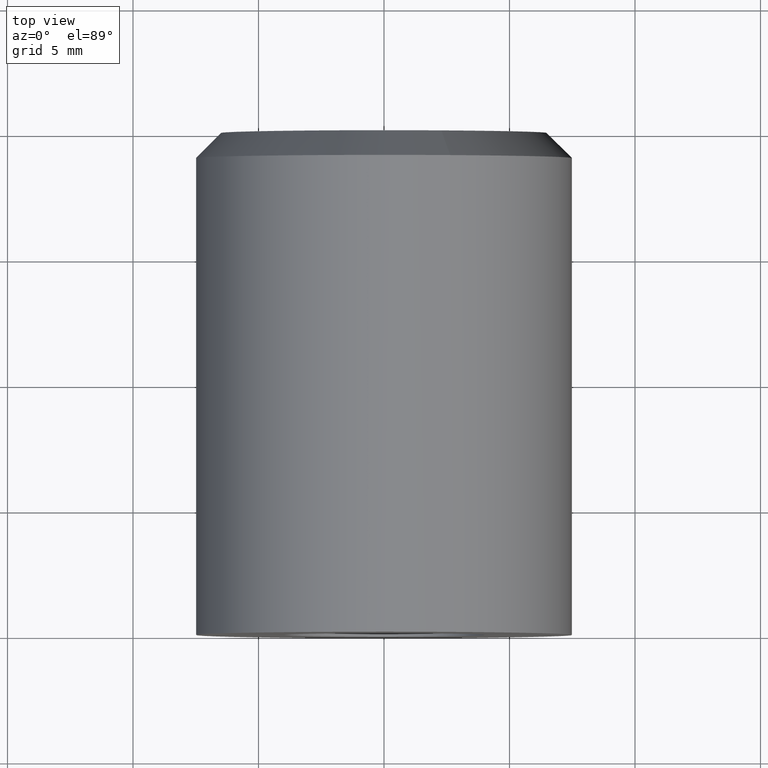
[diagram: clean part render]
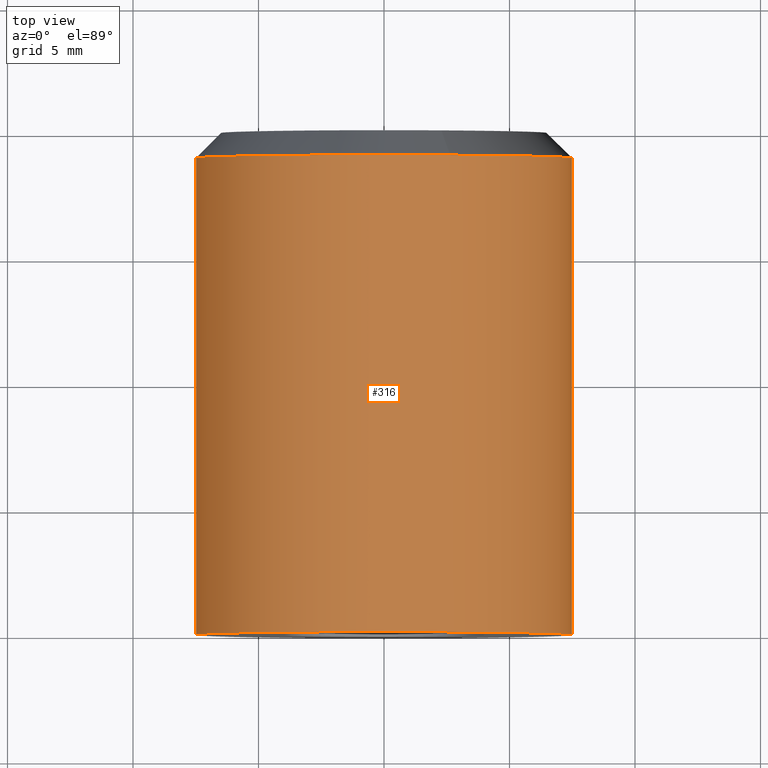
[diagram: same view with one face highlighted and labeled with its STEP entity id]
A machine part, top view. The second image highlights one B-rep face of the part: STEP entity #316.
In plain terms, the highlighted face is a freeform B-spline surface patch.
Its self-contained STEP definition (entity closure, byte-faithful):
#62=CARTESIAN_POINT('',(2.637134807943279,18.999999999999371,7.021076840823168));
#63=VERTEX_POINT('',#62);
#64=CARTESIAN_POINT('',(0.0,19.0,7.500000000000000));
#65=VERTEX_POINT('',#64);
#66=CARTESIAN_POINT('',(2.637134807943280,18.999999999999368,7.021076840823168));
#67=CARTESIAN_POINT('',(1.362055395507618,19.0,7.500000000000000));
#68=CARTESIAN_POINT('',(0.0,19.0,7.500000000000000));
#76=(BOUNDED_CURVE()B_SPLINE_CURVE(2,(#66,#67,#68),.UNSPECIFIED.,.F.,.U.)B_SPLINE_CURVE_WITH_KNOTS((3,3),(0.440284170898627,0.500000000000000),.UNSPECIFIED.)CURVE()GEOMETRIC_REPRESENTATION_ITEM()RATIONAL_B_SPLINE_CURVE((0.893499554635421,0.930038554401540,1.0))REPRESENTATION_ITEM(''));
#77=EDGE_CURVE('',#63,#65,#76,.T.);
#116=CARTESIAN_POINT('',(-7.486011170110235,19.000000004526569,0.457860997528976));
#117=VERTEX_POINT('',#116);
#123=CARTESIAN_POINT('',(0.0,19.0,7.500000000000000));
#124=CARTESIAN_POINT('',(-7.055298380458022,18.999999999999996,7.499999999999999));
#125=CARTESIAN_POINT('',(-7.486011170110235,19.000000004526569,0.457860997528976));
#133=(BOUNDED_CURVE()B_SPLINE_CURVE(2,(#123,#124,#125),.UNSPECIFIED.,.F.,.U.)B_SPLINE_CURVE_WITH_KNOTS((3,3),(0.500000000000000,0.739333032512299),.UNSPECIFIED.)CURVE()GEOMETRIC_REPRESENTATION_ITEM()RATIONAL_B_SPLINE_CURVE((1.0,0.719603910956352,0.976072192275943))REPRESENTATION_ITEM(''));
#134=EDGE_CURVE('',#65,#117,#133,.T.);
#161=CARTESIAN_POINT('',(7.447571630219821,19.0,-0.885255224634380));
#162=VERTEX_POINT('',#161);
#163=CARTESIAN_POINT('',(7.447571630219821,19.000000000000004,-0.885255224634380));
#164=CARTESIAN_POINT('',(7.500000000000001,19.0,-0.444180121628244));
#165=CARTESIAN_POINT('',(7.500000000000000,19.0,-1.836910E-016));
#166=CARTESIAN_POINT('',(7.500000000000000,19.0,5.194571967698237));
#167=CARTESIAN_POINT('',(2.637134807943279,18.999999999999361,7.021076840823170));
#175=(BOUNDED_CURVE()B_SPLINE_CURVE(2,(#163,#164,#165,#166,#167),.UNSPECIFIED.,.F.,.U.)B_SPLINE_CURVE_WITH_KNOTS((3,2,3),(0.229562508355085,0.250000000000000,0.440284170898627),.UNSPECIFIED.)CURVE()GEOMETRIC_REPRESENTATION_ITEM()RATIONAL_B_SPLINE_CURVE((0.956026822474627,0.976055989150591,1.0,0.777068226785008,0.893499554635421))REPRESENTATION_ITEM(''));
#176=EDGE_CURVE('',#162,#63,#175,.T.);
#245=CARTESIAN_POINT('',(7.447571447727496,19.475000000000009,-0.885256759925689));
#246=CARTESIAN_POINT('',(7.472907115864541,19.475000000000012,-0.672110464784833));
#247=CARTESIAN_POINT('',(7.486010988164000,19.475000000000009,-0.457864046511427));
#248=CARTESIAN_POINT('',(7.943875034675429,19.475000000000009,7.028146941652573));
#249=CARTESIAN_POINT('',(0.457864046511427,19.475000000000009,7.486010988164000));
#250=CARTESIAN_POINT('',(-7.028146941652573,19.475000000000009,7.943875034675429));
#251=CARTESIAN_POINT('',(-7.486010988164000,19.475000000000009,0.457864046511427));
#252=CARTESIAN_POINT('',(7.447571447727496,-0.486874999999998,-0.885256759925689));
#253=CARTESIAN_POINT('',(7.472907115864541,-0.486874999999998,-0.672110464784833));
#254=CARTESIAN_POINT('',(7.486010988164000,-0.486874999999998,-0.457864046511427));
#255=CARTESIAN_POINT('',(7.943875034675429,-0.486874999999998,7.028146941652573));
#256=CARTESIAN_POINT('',(0.457864046511427,-0.486874999999998,7.486010988164000));
#257=CARTESIAN_POINT('',(-7.028146941652573,-0.486874999999998,7.943875034675429));
#258=CARTESIAN_POINT('',(-7.486010988164000,-0.486874999999998,0.457864046511427));
#266=(BOUNDED_SURFACE()B_SPLINE_SURFACE(2,1,((#245,#252),(#246,#253),(#247,#254),(#248,#255),(#249,#256),(#250,#257),(#251,#258)),.UNSPECIFIED.,.F.,.F.,.U.)B_SPLINE_SURFACE_WITH_KNOTS((3,2,2,3),(2,2),(0.0,0.497056274847715,12.923463146040559,25.349870017233410),(0.0,19.961875000000010),.UNSPECIFIED.)GEOMETRIC_REPRESENTATION_ITEM()RATIONAL_B_SPLINE_SURFACE(((0.977505800795127,0.977505800795127),(0.988284271247462,0.988284271247462),(1.0,1.0),(0.707106781186548,0.707106781186548),(1.0,1.0),(0.707106781186548,0.707106781186548),(1.0,1.0)))REPRESENTATION_ITEM('')SURFACE());
#267=ORIENTED_EDGE('',*,*,#176,.T.);
#268=ORIENTED_EDGE('',*,*,#77,.T.);
#269=ORIENTED_EDGE('',*,*,#134,.T.);
#270=CARTESIAN_POINT('',(-7.486011356600631,-3.557742E-016,0.457858022546224));
#271=VERTEX_POINT('',#270);
#272=CARTESIAN_POINT('',(-7.486011170110235,19.000000004526569,0.457860997528976));
#273=CARTESIAN_POINT('',(-7.486011356600631,-3.557742E-016,0.457858022546224));
#274=QUASI_UNIFORM_CURVE('',1,(#272,#273),.UNSPECIFIED.,.F.,.U.);
#275=EDGE_CURVE('',#117,#271,#274,.T.);
#276=ORIENTED_EDGE('',*,*,#275,.T.);
#277=CARTESIAN_POINT('',(0.0,-1.377682E-015,7.500000000000000));
#278=VERTEX_POINT('',#277);
#279=CARTESIAN_POINT('',(0.0,-1.377682E-015,7.500000000000000));
#280=CARTESIAN_POINT('',(-7.055301189773867,-1.377682E-015,7.500000000000000));
#281=CARTESIAN_POINT('',(-7.486011356600631,-3.557742E-016,0.457858022546224));
#289=(BOUNDED_CURVE()B_SPLINE_CURVE(2,(#279,#280,#281),.UNSPECIFIED.,.F.,.U.)B_SPLINE_CURVE_WITH_KNOTS((3,3),(0.500000000000000,0.739333101089743),.UNSPECIFIED.)CURVE()GEOMETRIC_REPRESENTATION_ITEM()RATIONAL_B_SPLINE_CURVE((1.0,0.719603830612879,0.976072339250594))REPRESENTATION_ITEM(''));
#290=EDGE_CURVE('',#278,#271,#289,.T.);
#291=ORIENTED_EDGE('',*,*,#290,.F.);
#292=CARTESIAN_POINT('',(7.447571628019151,-1.569064E-015,-0.885255243148447));
#293=VERTEX_POINT('',#292);
#294=CARTESIAN_POINT('',(7.447571628019152,-1.569064E-015,-0.885255243148447));
#295=CARTESIAN_POINT('',(7.500000000000000,-1.377682E-015,-0.444180130983140));
#296=CARTESIAN_POINT('',(7.500000000000000,-1.377682E-015,-1.836910E-016));
#297=CARTESIAN_POINT('',(7.500000000000000,-1.377682E-015,7.500000000000000));
#298=CARTESIAN_POINT('',(0.0,-1.377682E-015,7.500000000000000));
#306=(BOUNDED_CURVE()B_SPLINE_CURVE(2,(#294,#295,#296,#297,#298),.UNSPECIFIED.,.F.,.U.)B_SPLINE_CURVE_WITH_KNOTS((3,2,3),(0.229562507934956,0.250000000000000,0.500000000000000),.UNSPECIFIED.)CURVE()GEOMETRIC_REPRESENTATION_ITEM()RATIONAL_B_SPLINE_CURVE((0.956026821651157,0.976055988658380,1.0,0.707106781186547,1.0))REPRESENTATION_ITEM(''));
#307=EDGE_CURVE('',#293,#278,#306,.T.);
#308=ORIENTED_EDGE('',*,*,#307,.F.);
#309=CARTESIAN_POINT('',(7.447571630219821,19.0,-0.885255224634380));
#310=CARTESIAN_POINT('',(7.447571628019151,-1.569064E-015,-0.885255243148447));
#311=QUASI_UNIFORM_CURVE('',1,(#309,#310),.UNSPECIFIED.,.F.,.U.);
#312=EDGE_CURVE('',#162,#293,#311,.T.);
#313=ORIENTED_EDGE('',*,*,#312,.F.);
#314=EDGE_LOOP('',(#267,#268,#269,#276,#291,#308,#313));
#315=FACE_OUTER_BOUND('',#314,.T.);
#316=ADVANCED_FACE('',(#315),#266,.T.);